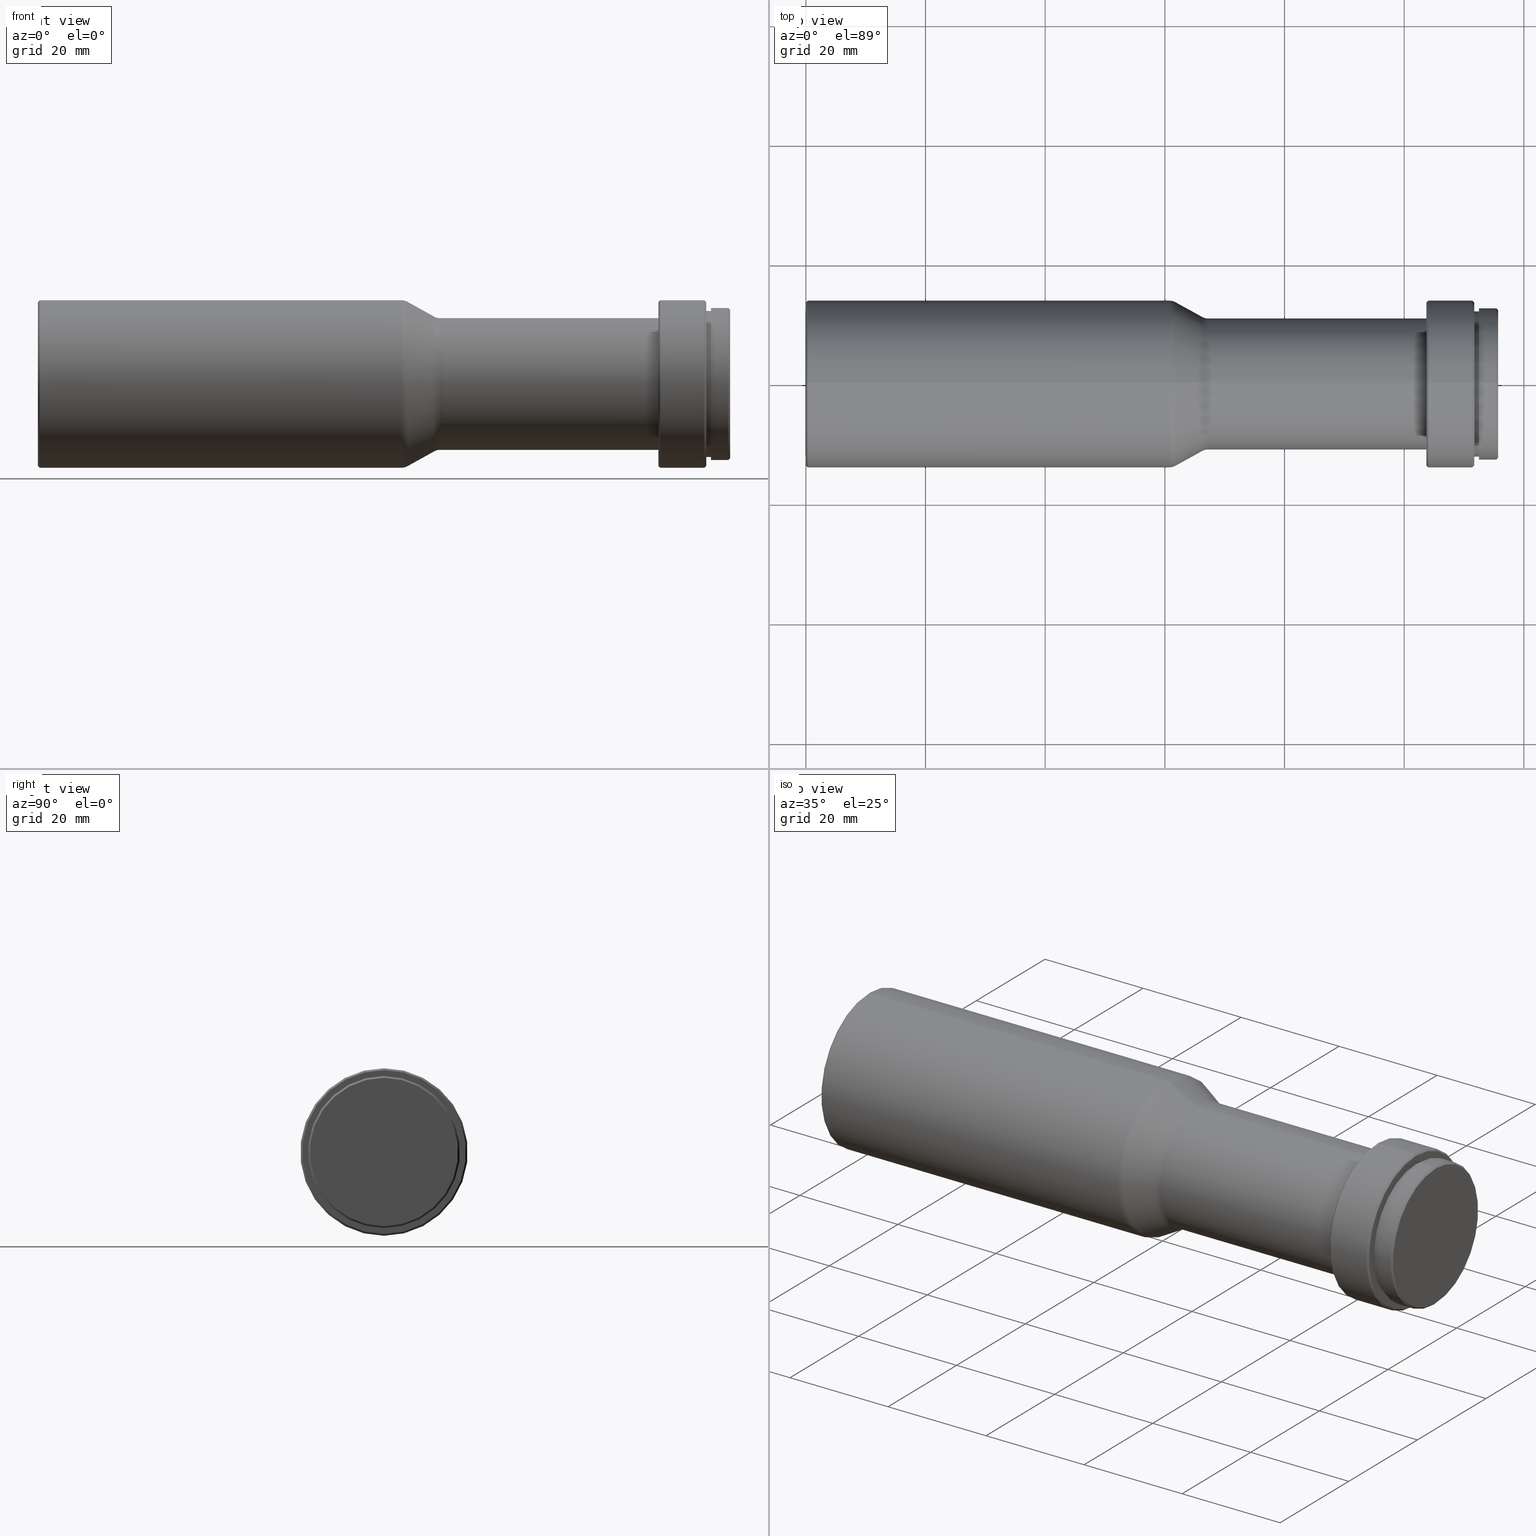
[diagram: canonical four-view strip — front | top / right | iso, engineering-drawing reading convention]
A machine part, canonical four-view strip (front | top / right | iso — engineering-drawing reading convention). The complete STEP part file that produces these views, byte-faithful:
ISO-10303-21;
HEADER;
FILE_DESCRIPTION (( 'STEP AP203' ),
    '1' );
FILE_NAME ('WWH30-63ATV3.STEP',
    '2021-05-11T01:16:36',
    ( 'Windows User' ),
    ( 'P R C' ),
    'SwSTEP 2.0',
    'SolidWorks 2017',
    '' );
FILE_SCHEMA (( 'CONFIG_CONTROL_DESIGN' ));
ENDSEC;

DATA;
#1 = AXIS2_PLACEMENT_3D ( 'NONE', #234, #544, #29 ) ;
#2 = APPLICATION_CONTEXT ( 'configuration controlled 3d designs of mechanical parts and assemblies' ) ;
#3 = PERSON_AND_ORGANIZATION_ROLE ( 'design_supplier' ) ;
#4 = PERSON_AND_ORGANIZATION ( #178, #433 ) ;
#5 = FACE_OUTER_BOUND ( 'NONE', #643, .T. ) ;
#6 = EDGE_CURVE ( 'NONE', #9, #712, #542, .T. ) ;
#7 = FACE_OUTER_BOUND ( 'NONE', #610, .T. ) ;
#8 = VERTEX_POINT ( 'NONE', #143 ) ;
#9 = VERTEX_POINT ( 'NONE', #467 ) ;
#10 = PERSON_AND_ORGANIZATION_ROLE ( 'creator' ) ;
#11 = CARTESIAN_POINT ( 'NONE',  ( 111.4000000000000200, 0.0000000000000000000, 0.0000000000000000000 ) ) ;
#12 = EDGE_CURVE ( 'NONE', #573, #21, #233, .T. ) ;
#13 = DIRECTION ( 'NONE',  ( 0.0000000000000000000, -1.000000000000000000, 0.0000000000000000000 ) ) ;
#14 = PRODUCT_DEFINITION ( 'δ֪', '', #420, #599 ) ;
#15 = DIRECTION ( 'NONE',  ( 0.0000000000000000000, 0.0000000000000000000, 1.000000000000000000 ) ) ;
#16 = FACE_OUTER_BOUND ( 'NONE', #797, .T. ) ;
#17 = CIRCLE ( 'NONE', #168, 12.70000000000000100 ) ;
#18 = DIRECTION ( 'NONE',  ( -1.000000000000000000, -0.0000000000000000000, -0.0000000000000000000 ) ) ;
#19 = AXIS2_PLACEMENT_3D ( 'NONE', #781, #400, #482 ) ;
#20 = TOROIDAL_SURFACE ( 'NONE', #260, 12.00000000000000000, 2.000000000000000000 ) ;
#21 = VERTEX_POINT ( 'NONE', #353 ) ;
#22 = DIRECTION ( 'NONE',  ( 0.0000000000000000000, 0.0000000000000000000, 1.000000000000000000 ) ) ;
#23 = DIRECTION ( 'NONE',  ( -0.8741572761215379300, 0.0000000000000000000, 0.4856429311786316100 ) ) ;
#24 = CARTESIAN_POINT ( 'NONE',  ( 61.75303380596247400, 1.699094229906919900E-015, -13.74831455224307100 ) ) ;
#25 = DIRECTION ( 'NONE',  ( -1.000000000000000000, -0.0000000000000000000, -0.0000000000000000000 ) ) ;
#26 = PERSON_AND_ORGANIZATION ( #178, #433 ) ;
#27 = EDGE_CURVE ( 'NONE', #305, #411, #75, .T. ) ;
#28 = VERTEX_POINT ( 'NONE', #167 ) ;
#29 = DIRECTION ( 'NONE',  ( 0.0000000000000000000, 0.0000000000000000000, 1.000000000000000000 ) ) ;
#30 = ORIENTED_EDGE ( 'NONE', *, *, #776, .F. ) ;
#31 = AXIS2_PLACEMENT_3D ( 'NONE', #559, #239, #733 ) ;
#32 = EDGE_LOOP ( 'NONE', ( #154, #427, #789, #414 ) ) ;
#33 = ORIENTED_EDGE ( 'NONE', *, *, #373, .F. ) ;
#34 = PLANE ( 'NONE',  #711 ) ;
#35 = AXIS2_PLACEMENT_3D ( 'NONE', #192, #312, #634 ) ;
#36 = DIRECTION ( 'NONE',  ( -1.000000000000000000, -0.0000000000000000000, -0.0000000000000000000 ) ) ;
#37 = CARTESIAN_POINT ( 'NONE',  ( 112.5000000000000000, 1.555301434917138600E-015, -12.70000000000000100 ) ) ;
#38 = CONICAL_SURFACE ( 'NONE', #750, 13.70000000000000100, 0.7853981633974569400 ) ;
#39 = DIRECTION ( 'NONE',  ( -1.000000000000000000, -0.0000000000000000000, -0.0000000000000000000 ) ) ;
#40 = CIRCLE ( 'NONE', #657, 2.000000000000000000 ) ;
#41 = ADVANCED_FACE ( 'NONE', ( #424 ), #280, .F. ) ;
#42 = VECTOR ( 'NONE', #84, 1000.000000000000000 ) ;
#43 = ORIENTED_EDGE ( 'NONE', *, *, #602, .T. ) ;
#44 = CARTESIAN_POINT ( 'NONE',  ( 111.7000000000000000, 0.0000000000000000000, 0.0000000000000000000 ) ) ;
#45 = CARTESIAN_POINT ( 'NONE',  ( 111.4000000000000200, 1.714505518806294600E-015, -14.00000000000000000 ) ) ;
#46 = DIRECTION ( 'NONE',  ( 0.0000000000000000000, 0.0000000000000000000, 1.000000000000000000 ) ) ;
#47 = AXIS2_PLACEMENT_3D ( 'NONE', #408, #743, #370 ) ;
#48 = ADVANCED_FACE ( 'NONE', ( #385 ), #20, .T. ) ;
#49 = CIRCLE ( 'NONE', #176, 11.00000000000000000 ) ;
#50 = ORIENTED_EDGE ( 'NONE', *, *, #266, .F. ) ;
#51 = ORIENTED_EDGE ( 'NONE', *, *, #415, .T. ) ;
#52 = ORIENTED_EDGE ( 'NONE', *, *, #585, .T. ) ;
#53 = CARTESIAN_POINT ( 'NONE',  ( 67.21825205639481700, 1.362522767961462900E-015, -11.00000000000000000 ) ) ;
#54 = EDGE_CURVE ( 'NONE', #320, #21, #556, .T. ) ;
#55 = EDGE_CURVE ( 'NONE', #512, #648, #325, .T. ) ;
#56 = AXIS2_PLACEMENT_3D ( 'NONE', #814, #60, #576 ) ;
#57 = CYLINDRICAL_SURFACE ( 'NONE', #816, 12.20000000000000100 ) ;
#58 = LINE ( 'NONE', #546, #463 ) ;
#59 = FACE_OUTER_BOUND ( 'NONE', #663, .T. ) ;
#60 = DIRECTION ( 'NONE',  ( 1.000000000000000000, 0.0000000000000000000, 0.0000000000000000000 ) ) ;
#61 = ORIENTED_EDGE ( 'NONE', *, *, #584, .F. ) ;
#62 = DIRECTION ( 'NONE',  ( -1.000000000000000000, -0.0000000000000000000, -0.0000000000000000000 ) ) ;
#63 = CARTESIAN_POINT ( 'NONE',  ( 111.7000000000000000, 1.677766114831874000E-015, -13.70000000000000100 ) ) ;
#64 = FACE_OUTER_BOUND ( 'NONE', #165, .T. ) ;
#65 = SECURITY_CLASSIFICATION_LEVEL ( 'unclassified' ) ;
#66 = ORIENTED_EDGE ( 'NONE', *, *, #378, .T. ) ;
#67 = ORIENTED_EDGE ( 'NONE', *, *, #449, .T. ) ;
#68 = ORIENTED_EDGE ( 'NONE', *, *, #206, .F. ) ;
#69 = EDGE_CURVE ( 'NONE', #531, #648, #359, .T. ) ;
#70 = CC_DESIGN_PERSON_AND_ORGANIZATION_ASSIGNMENT ( #26, #388, ( #695 ) ) ;
#71 = APPROVAL_ROLE ( '' ) ;
#72 = VECTOR ( 'NONE', #115, 1000.000000000000000 ) ;
#73 = AXIS2_PLACEMENT_3D ( 'NONE', #279, #155, #707 ) ;
#74 = FACE_OUTER_BOUND ( 'NONE', #293, .T. ) ;
#75 = CIRCLE ( 'NONE', #477, 11.00000000000000000 ) ;
#76 = ORIENTED_EDGE ( 'NONE', *, *, #718, .F. ) ;
#77 = DIRECTION ( 'NONE',  ( -0.8741572761215379300, 5.947410611964494700E-017, -0.4856429311786316100 ) ) ;
#78 = DIRECTION ( 'NONE',  ( -1.000000000000000000, -0.0000000000000000000, -0.0000000000000000000 ) ) ;
#79 = EDGE_CURVE ( 'NONE', #760, #574, #153, .T. ) ;
#80 = CYLINDRICAL_SURFACE ( 'NONE', #549, 14.00000000000000000 ) ;
#81 = AXIS2_PLACEMENT_3D ( 'NONE', #430, #103, #298 ) ;
#82 = EDGE_LOOP ( 'NONE', ( #697, #568 ) ) ;
#83 = ORIENTED_EDGE ( 'NONE', *, *, #145, .F. ) ;
#84 = DIRECTION ( 'NONE',  ( -1.000000000000000000, -0.0000000000000000000, -0.0000000000000000000 ) ) ;
#85 = ORIENTED_EDGE ( 'NONE', *, *, #584, .T. ) ;
#86 = CARTESIAN_POINT ( 'NONE',  ( 61.75303380596247400, 0.0000000000000000000, 13.74831455224307100 ) ) ;
#87 = DIRECTION ( 'NONE',  ( -1.000000000000000000, -0.0000000000000000000, -0.0000000000000000000 ) ) ;
#88 = EDGE_CURVE ( 'NONE', #547, #98, #381, .T. ) ;
#89 = DIRECTION ( 'NONE',  ( 0.0000000000000000000, 0.0000000000000000000, 1.000000000000000000 ) ) ;
#90 = CARTESIAN_POINT ( 'NONE',  ( 60.78174794360520400, 0.0000000000000000000, 0.0000000000000000000 ) ) ;
#91 = COORDINATED_UNIVERSAL_TIME_OFFSET ( 8, 0, .AHEAD. ) ;
#92 = LINE ( 'NONE', #483, #748 ) ;
#93 = EDGE_CURVE ( 'NONE', #393, #709, #795, .T. ) ;
#94 = CIRCLE ( 'NONE', #620, 12.20000000000000100 ) ;
#95 = CARTESIAN_POINT ( 'NONE',  ( 103.7000000000000200, 0.0000000000000000000, 0.0000000000000000000 ) ) ;
#96 = ORIENTED_EDGE ( 'NONE', *, *, #160, .T. ) ;
#97 = CC_DESIGN_DATE_AND_TIME_ASSIGNMENT ( #680, #767, ( #14 ) ) ;
#98 = VERTEX_POINT ( 'NONE', #24 ) ;
#99 = ADVANCED_FACE ( 'NONE', ( #642 ), #464, .T. ) ;
#100 = DIRECTION ( 'NONE',  ( 0.7071067811865414700, 0.0000000000000000000, -0.7071067811865536800 ) ) ;
#101 = ADVANCED_FACE ( 'NONE', ( #303 ), #163, .T. ) ;
#102 = CARTESIAN_POINT ( 'NONE',  ( 66.24696619403754000, 0.0000000000000000000, 0.0000000000000000000 ) ) ;
#103 = DIRECTION ( 'NONE',  ( -1.000000000000000000, -0.0000000000000000000, -0.0000000000000000000 ) ) ;
#104 = FACE_OUTER_BOUND ( 'NONE', #739, .T. ) ;
#105 = VERTEX_POINT ( 'NONE', #37 ) ;
#106 = ADVANCED_FACE ( 'NONE', ( #708 ), #476, .T. ) ;
#107 = ORIENTED_EDGE ( 'NONE', *, *, #426, .F. ) ;
#108 = DIRECTION ( 'NONE',  ( -1.000000000000000000, -0.0000000000000000000, -0.0000000000000000000 ) ) ;
#109 = ORIENTED_EDGE ( 'NONE', *, *, #718, .T. ) ;
#110 = PRODUCT ( 'WWH30-63ATV3', 'WWH30-63ATV3', '', ( #384 ) ) ;
#111 = CARTESIAN_POINT ( 'NONE',  ( 60.78174794360519700, 0.0000000000000000000, 0.0000000000000000000 ) ) ;
#112 = EDGE_CURVE ( 'NONE', #197, #141, #621, .T. ) ;
#113 = DIRECTION ( 'NONE',  ( 1.000000000000000000, 0.0000000000000000000, 0.0000000000000000000 ) ) ;
#114 = CC_DESIGN_DATE_AND_TIME_ASSIGNMENT ( #803, #450, ( #695 ) ) ;
#115 = DIRECTION ( 'NONE',  ( -0.7071067811865414700, 0.0000000000000000000, 0.7071067811865536800 ) ) ;
#116 = DATE_AND_TIME ( #485, #221 ) ;
#117 = LINE ( 'NONE', #63, #409 ) ;
#118 = ADVANCED_FACE ( 'NONE', ( #128, #59 ), #659, .F. ) ;
#119 = CONICAL_SURFACE ( 'NONE', #337, 12.40000000000000200, 0.7853981633975032400 ) ;
#120 = DIRECTION ( 'NONE',  ( -1.000000000000000000, -0.0000000000000000000, -0.0000000000000000000 ) ) ;
#121 = ORIENTED_EDGE ( 'NONE', *, *, #470, .T. ) ;
#122 = VERTEX_POINT ( 'NONE', #290 ) ;
#123 = AXIS2_PLACEMENT_3D ( 'NONE', #150, #392, #344 ) ;
#124 = CARTESIAN_POINT ( 'NONE',  ( 0.2999999999999999900, 0.0000000000000000000, 0.0000000000000000000 ) ) ;
#125 = AXIS2_PLACEMENT_3D ( 'NONE', #692, #265, #577 ) ;
#126 = CARTESIAN_POINT ( 'NONE',  ( 115.7000000000000000, 12.40000000000000200, 0.0000000000000000000 ) ) ;
#127 = CIRCLE ( 'NONE', #779, 13.70000000000000100 ) ;
#128 = FACE_BOUND ( 'NONE', #581, .T. ) ;
#129 = DIRECTION ( 'NONE',  ( 0.0000000000000000000, 0.0000000000000000000, 1.000000000000000000 ) ) ;
#130 = EDGE_LOOP ( 'NONE', ( #372, #109, #543, #332 ) ) ;
#131 = EDGE_CURVE ( 'NONE', #512, #600, #445, .T. ) ;
#132 = ORIENTED_EDGE ( 'NONE', *, *, #564, .T. ) ;
#133 = AXIS2_PLACEMENT_3D ( 'NONE', #158, #404, #285 ) ;
#134 = APPROVAL_STATUS ( 'not_yet_approved' ) ;
#135 = CARTESIAN_POINT ( 'NONE',  ( 115.7000000000000000, 0.0000000000000000000, 0.0000000000000000000 ) ) ;
#136 = AXIS2_PLACEMENT_3D ( 'NONE', #209, #13, #335 ) ;
#137 = APPROVAL_DATE_TIME ( #116, #264 ) ;
#138 = CIRCLE ( 'NONE', #217, 12.70000000000000100 ) ;
#139 = LINE ( 'NONE', #534, #571 ) ;
#140 = ORIENTED_EDGE ( 'NONE', *, *, #54, .T. ) ;
#141 = VERTEX_POINT ( 'NONE', #53 ) ;
#142 = DIRECTION ( 'NONE',  ( 1.000000000000000000, 0.0000000000000000000, 0.0000000000000000000 ) ) ;
#143 = CARTESIAN_POINT ( 'NONE',  ( 103.7000000000000200, 0.0000000000000000000, -13.70000000000000100 ) ) ;
#144 = EDGE_LOOP ( 'NONE', ( #61, #510, #583, #754 ) ) ;
#145 = EDGE_CURVE ( 'NONE', #665, #393, #727, .T. ) ;
#146 = DIRECTION ( 'NONE',  ( -1.000000000000000000, -0.0000000000000000000, -0.0000000000000000000 ) ) ;
#147 = CC_DESIGN_PERSON_AND_ORGANIZATION_ASSIGNMENT ( #766, #3, ( #420 ) ) ;
#148 = UNCERTAINTY_MEASURE_WITH_UNIT (LENGTH_MEASURE( 1.000000000000000100E-005 ), #701, 'distance_accuracy_value', 'NONE');
#149 = CARTESIAN_POINT ( 'NONE',  ( 0.0000000000000000000, 0.0000000000000000000, 0.0000000000000000000 ) ) ;
#150 = CARTESIAN_POINT ( 'NONE',  ( 111.7000000000000000, 0.0000000000000000000, 0.0000000000000000000 ) ) ;
#151 = AXIS2_PLACEMENT_3D ( 'NONE', #724, #113, #800 ) ;
#152 = CIRCLE ( 'NONE', #136, 2.000000000000000000 ) ;
#153 = CIRCLE ( 'NONE', #640, 2.000000000000000000 ) ;
#154 = ORIENTED_EDGE ( 'NONE', *, *, #819, .T. ) ;
#155 = DIRECTION ( 'NONE',  ( -1.000000000000000000, -0.0000000000000000000, -0.0000000000000000000 ) ) ;
#156 = ORIENTED_EDGE ( 'NONE', *, *, #251, .F. ) ;
#157 = CARTESIAN_POINT ( 'NONE',  ( 103.7000000000000200, 1.696135816819084200E-015, 13.70000000000000100 ) ) ;
#158 = CARTESIAN_POINT ( 'NONE',  ( 0.0000000000000000000, 0.0000000000000000000, 0.0000000000000000000 ) ) ;
#159 = DIRECTION ( 'NONE',  ( 0.0000000000000000000, 0.0000000000000000000, 1.000000000000000000 ) ) ;
#160 = EDGE_CURVE ( 'NONE', #281, #787, #633, .T. ) ;
#161 = CARTESIAN_POINT ( 'NONE',  ( 60.78174794360519700, 0.0000000000000000000, 14.00000000000000000 ) ) ;
#162 = CC_DESIGN_PERSON_AND_ORGANIZATION_ASSIGNMENT ( #794, #10, ( #420 ) ) ;
#163 = CYLINDRICAL_SURFACE ( 'NONE', #605, 12.20000000000000100 ) ;
#164 = ORIENTED_EDGE ( 'NONE', *, *, #470, .F. ) ;
#165 = EDGE_LOOP ( 'NONE', ( #684, #710, #656, #778 ) ) ;
#166 = DIRECTION ( 'NONE',  ( 0.0000000000000000000, 0.0000000000000000000, 1.000000000000000000 ) ) ;
#167 = CARTESIAN_POINT ( 'NONE',  ( 111.7000000000000000, 0.0000000000000000000, 13.70000000000000100 ) ) ;
#168 = AXIS2_PLACEMENT_3D ( 'NONE', #462, #78, #532 ) ;
#169 = ADVANCED_FACE ( 'NONE', ( #499 ), #768, .F. ) ;
#170 = DIRECTION ( 'NONE',  ( 0.0000000000000000000, 0.0000000000000000000, 1.000000000000000000 ) ) ;
#171 = DIRECTION ( 'NONE',  ( -0.7071067811865087100, 0.0000000000000000000, 0.7071067811865863200 ) ) ;
#172 = APPROVAL_PERSON_ORGANIZATION ( #272, #603, #651 ) ;
#173 = FACE_OUTER_BOUND ( 'NONE', #703, .T. ) ;
#174 = ORIENTED_EDGE ( 'NONE', *, *, #284, .T. ) ;
#175 = DIRECTION ( 'NONE',  ( -1.000000000000000000, -0.0000000000000000000, -0.0000000000000000000 ) ) ;
#176 = AXIS2_PLACEMENT_3D ( 'NONE', #505, #444, #691 ) ;
#177 = ORIENTED_EDGE ( 'NONE', *, *, #426, .T. ) ;
#178 = PERSON ( 'δָ��', 'δָ��', 'δָ��', ('δָ��'), ('δָ��'), ('δָ��') ) ;
#179 = CARTESIAN_POINT ( 'NONE',  ( 104.0000000000000100, 0.0000000000000000000, 0.0000000000000000000 ) ) ;
#180 = EDGE_CURVE ( 'NONE', #573, #558, #509, .T. ) ;
#181 = CARTESIAN_POINT ( 'NONE',  ( 115.7000000000000000, 0.0000000000000000000, 12.40000000000000200 ) ) ;
#182 = AXIS2_PLACEMENT_3D ( 'NONE', #652, #18, #336 ) ;
#183 = CALENDAR_DATE ( 2021, 11, 5 ) ;
#184 = CARTESIAN_POINT ( 'NONE',  ( 0.2999999999999999900, 0.0000000000000000000, 0.0000000000000000000 ) ) ;
#185 = VECTOR ( 'NONE', #679, 1000.000000000000000 ) ;
#186 = TOROIDAL_SURFACE ( 'NONE', #506, 12.00000000000000000, 2.000000000000000000 ) ;
#187 = DIRECTION ( 'NONE',  ( -1.000000000000000000, -0.0000000000000000000, -0.0000000000000000000 ) ) ;
#188 = AXIS2_PLACEMENT_3D ( 'NONE', #149, #458, #212 ) ;
#189 = ORIENTED_EDGE ( 'NONE', *, *, #228, .T. ) ;
#190 = DIRECTION ( 'NONE',  ( 0.0000000000000000000, 0.0000000000000000000, 1.000000000000000000 ) ) ;
#191 = EDGE_LOOP ( 'NONE', ( #492, #132, #649, #731 ) ) ;
#192 = CARTESIAN_POINT ( 'NONE',  ( 60.78174794360519700, 0.0000000000000000000, 0.0000000000000000000 ) ) ;
#193 = CARTESIAN_POINT ( 'NONE',  ( 0.0000000000000000000, 0.0000000000000000000, 0.0000000000000000000 ) ) ;
#194 = PRODUCT_RELATED_PRODUCT_CATEGORY ( 'detail', '', ( #110 ) ) ;
#195 = LINE ( 'NONE', #784, #244 ) ;
#196 = CONICAL_SURFACE ( 'NONE', #578, 14.00000000000000000, 0.7853981633974569400 ) ;
#197 = VERTEX_POINT ( 'NONE', #252 ) ;
#198 = ORIENTED_EDGE ( 'NONE', *, *, #313, .F. ) ;
#199 = EDGE_CURVE ( 'NONE', #197, #760, #597, .T. ) ;
#200 = PLANE ( 'NONE',  #56 ) ;
#201 = DIRECTION ( 'NONE',  ( 0.0000000000000000000, 0.0000000000000000000, 1.000000000000000000 ) ) ;
#202 = LOCAL_TIME ( 9, 16, 36.00000000000000000, #243 ) ;
#203 = CONICAL_SURFACE ( 'NONE', #596, 14.00000000000000000, 0.7853981633974481700 ) ;
#204 = EDGE_LOOP ( 'NONE', ( #598, #818, #236, #164 ) ) ;
#205 = ORIENTED_EDGE ( 'NONE', *, *, #309, .F. ) ;
#206 = EDGE_CURVE ( 'NONE', #558, #316, #519, .T. ) ;
#207 = ORIENTED_EDGE ( 'NONE', *, *, #283, .F. ) ;
#208 = ORIENTED_EDGE ( 'NONE', *, *, #93, .F. ) ;
#209 = CARTESIAN_POINT ( 'NONE',  ( 60.78174794360520400, 0.0000000000000000000, 12.00000000000000000 ) ) ;
#210 = CYLINDRICAL_SURFACE ( 'NONE', #513, 12.70000000000000100 ) ;
#211 = CYLINDRICAL_SURFACE ( 'NONE', #188, 11.00000000000000000 ) ;
#212 = DIRECTION ( 'NONE',  ( 0.0000000000000000000, 0.0000000000000000000, 1.000000000000000000 ) ) ;
#213 = VECTOR ( 'NONE', #669, 1000.000000000000000 ) ;
#214 = ORIENTED_EDGE ( 'NONE', *, *, #283, .T. ) ;
#215 = VERTEX_POINT ( 'NONE', #181 ) ;
#216 = DIRECTION ( 'NONE',  ( -1.000000000000000000, -0.0000000000000000000, -0.0000000000000000000 ) ) ;
#217 = AXIS2_PLACEMENT_3D ( 'NONE', #311, #175, #563 ) ;
#218 = CARTESIAN_POINT ( 'NONE',  ( 66.24696619403754000, 0.0000000000000000000, 0.0000000000000000000 ) ) ;
#219 = EDGE_CURVE ( 'NONE', #709, #393, #323, .T. ) ;
#220 = DIRECTION ( 'NONE',  ( 0.0000000000000000000, 0.0000000000000000000, -1.000000000000000000 ) ) ;
#221 = LOCAL_TIME ( 9, 16, 36.00000000000000000, #496 ) ;
#222 = AXIS2_PLACEMENT_3D ( 'NONE', #354, #25, #89 ) ;
#223 = FACE_OUTER_BOUND ( 'NONE', #352, .T. ) ;
#224 = ORIENTED_EDGE ( 'NONE', *, *, #88, .F. ) ;
#225 = ORIENTED_EDGE ( 'NONE', *, *, #199, .F. ) ;
#226 = CARTESIAN_POINT ( 'NONE',  ( 111.7000000000000000, 0.0000000000000000000, 12.20000000000000100 ) ) ;
#227 = ORIENTED_EDGE ( 'NONE', *, *, #744, .F. ) ;
#228 = EDGE_CURVE ( 'NONE', #411, #574, #379, .T. ) ;
#229 = DIRECTION ( 'NONE',  ( 1.000000000000000000, 0.0000000000000000000, 0.0000000000000000000 ) ) ;
#230 = CARTESIAN_POINT ( 'NONE',  ( 0.2999999999999999900, 0.0000000000000000000, -14.00000000000000000 ) ) ;
#231 = LINE ( 'NONE', #493, #185 ) ;
#232 = CIRCLE ( 'NONE', #73, 13.70000000000000100 ) ;
#233 = LINE ( 'NONE', #590, #565 ) ;
#234 = CARTESIAN_POINT ( 'NONE',  ( 67.21825205639481700, 0.0000000000000000000, 0.0000000000000000000 ) ) ;
#235 = ORIENTED_EDGE ( 'NONE', *, *, #27, .T. ) ;
#236 = ORIENTED_EDGE ( 'NONE', *, *, #627, .F. ) ;
#237 = CARTESIAN_POINT ( 'NONE',  ( 112.5000000000000000, 0.0000000000000000000, 0.0000000000000000000 ) ) ;
#238 = EDGE_CURVE ( 'NONE', #305, #141, #289, .T. ) ;
#239 = DIRECTION ( 'NONE',  ( -1.000000000000000000, -0.0000000000000000000, -0.0000000000000000000 ) ) ;
#240 = DIRECTION ( 'NONE',  ( -1.000000000000000000, -0.0000000000000000000, -0.0000000000000000000 ) ) ;
#241 = ADVANCED_FACE ( 'NONE', ( #694 ), #278, .T. ) ;
#242 = DIRECTION ( 'NONE',  ( -1.000000000000000000, -0.0000000000000000000, -0.0000000000000000000 ) ) ;
#243 = COORDINATED_UNIVERSAL_TIME_OFFSET ( 8, 0, .AHEAD. ) ;
#244 = VECTOR ( 'NONE', #100, 1000.000000000000000 ) ;
#245 = DIRECTION ( 'NONE',  ( 0.7071067811865476800, 8.659560562354931600E-017, 0.7071067811865474600 ) ) ;
#246 = EDGE_LOOP ( 'NONE', ( #317, #342, #351, #270 ) ) ;
#247 = CARTESIAN_POINT ( 'NONE',  ( 115.4000000000000300, 0.0000000000000000000, 12.70000000000000100 ) ) ;
#248 = ORIENTED_EDGE ( 'NONE', *, *, #112, .T. ) ;
#249 = MANIFOLD_SOLID_BREP ( '��ת1', #677 ) ;
#250 = DIRECTION ( 'NONE',  ( 0.0000000000000000000, 0.0000000000000000000, 1.000000000000000000 ) ) ;
#251 = EDGE_CURVE ( 'NONE', #717, #316, #350, .T. ) ;
#252 = CARTESIAN_POINT ( 'NONE',  ( 66.24696619403754000, 1.530808498934191500E-015, -11.25168544775692900 ) ) ;
#253 = ADVANCED_FACE ( 'NONE', ( #173 ), #186, .T. ) ;
#254 = AXIS2_PLACEMENT_3D ( 'NONE', #135, #761, #455 ) ;
#255 = DIRECTION ( 'NONE',  ( -1.000000000000000000, -0.0000000000000000000, -0.0000000000000000000 ) ) ;
#256 = CARTESIAN_POINT ( 'NONE',  ( 103.7000000000000200, 1.347111479062088400E-015, -11.00000000000000000 ) ) ;
#257 = FACE_OUTER_BOUND ( 'NONE', #82, .T. ) ;
#258 = ADVANCED_FACE ( 'NONE', ( #647 ), #119, .T. ) ;
#259 = VECTOR ( 'NONE', #245, 1000.000000000000000 ) ;
#260 = AXIS2_PLACEMENT_3D ( 'NONE', #90, #554, #609 ) ;
#261 = EDGE_LOOP ( 'NONE', ( #501, #702, #43, #729 ) ) ;
#262 = CARTESIAN_POINT ( 'NONE',  ( 0.0000000000000000000, 0.0000000000000000000, 0.0000000000000000000 ) ) ;
#263 = DIRECTION ( 'NONE',  ( -1.000000000000000000, -0.0000000000000000000, -0.0000000000000000000 ) ) ;
#264 = APPROVAL ( #589, 'δָ��' ) ;
#265 = DIRECTION ( 'NONE',  ( -1.000000000000000000, -0.0000000000000000000, -0.0000000000000000000 ) ) ;
#266 = EDGE_CURVE ( 'NONE', #393, #105, #751, .T. ) ;
#267 = ORIENTED_EDGE ( 'NONE', *, *, #307, .T. ) ;
#268 = ORIENTED_EDGE ( 'NONE', *, *, #494, .T. ) ;
#269 = AXIS2_PLACEMENT_3D ( 'NONE', #349, #108, #616 ) ;
#270 = ORIENTED_EDGE ( 'NONE', *, *, #602, .F. ) ;
#271 =( NAMED_UNIT ( * ) PLANE_ANGLE_UNIT ( ) SI_UNIT ( $, .RADIAN. ) );
#272 = PERSON_AND_ORGANIZATION ( #178, #433 ) ;
#273 = CARTESIAN_POINT ( 'NONE',  ( 0.0000000000000000000, 0.0000000000000000000, -13.70000000000000100 ) ) ;
#274 = VECTOR ( 'NONE', #23, 1000.000000000000100 ) ;
#275 = ORIENTED_EDGE ( 'NONE', *, *, #490, .F. ) ;
#276 = CARTESIAN_POINT ( 'NONE',  ( 103.7000000000000200, 0.0000000000000000000, 11.00000000000000000 ) ) ;
#277 = CARTESIAN_POINT ( 'NONE',  ( 66.24696619403754000, 0.0000000000000000000, 11.25168544775692900 ) ) ;
#278 = CONICAL_SURFACE ( 'NONE', #594, 13.70000000000000100, 0.7853981633974569400 ) ;
#279 = CARTESIAN_POINT ( 'NONE',  ( 103.7000000000000200, 0.0000000000000000000, 0.0000000000000000000 ) ) ;
#280 = TOROIDAL_SURFACE ( 'NONE', #1, 13.00000000000000000, 2.000000000000000000 ) ;
#281 = VERTEX_POINT ( 'NONE', #745 ) ;
#282 = EDGE_LOOP ( 'NONE', ( #214, #683, #502, #68 ) ) ;
#283 = EDGE_CURVE ( 'NONE', #558, #573, #817, .T. ) ;
#284 = EDGE_CURVE ( 'NONE', #712, #787, #618, .T. ) ;
#285 = DIRECTION ( 'NONE',  ( 0.0000000000000000000, 0.0000000000000000000, 1.000000000000000000 ) ) ;
#286 = CARTESIAN_POINT ( 'NONE',  ( 112.5000000000000000, 0.0000000000000000000, 12.20000000000000100 ) ) ;
#287 = APPROVAL_DATE_TIME ( #715, #567 ) ;
#288 = CIRCLE ( 'NONE', #254, 12.40000000000000200 ) ;
#289 = LINE ( 'NONE', #678, #806 ) ;
#290 = CARTESIAN_POINT ( 'NONE',  ( 112.5000000000000000, 0.0000000000000000000, 12.70000000000000100 ) ) ;
#291 = ORIENTED_EDGE ( 'NONE', *, *, #309, .T. ) ;
#292 = DIRECTION ( 'NONE',  ( 0.0000000000000000000, 0.0000000000000000000, -1.000000000000000000 ) ) ;
#293 = EDGE_LOOP ( 'NONE', ( #520, #362, #696, #763 ) ) ;
#294 = EDGE_LOOP ( 'NONE', ( #382, #772 ) ) ;
#295 = DIRECTION ( 'NONE',  ( 0.0000000000000000000, 0.0000000000000000000, 1.000000000000000000 ) ) ;
#296 = ADVANCED_BREP_SHAPE_REPRESENTATION ( 'WWH30-63ATV3', ( #249, #528 ), #374 ) ;
#297 = AXIS2_PLACEMENT_3D ( 'NONE', #713, #469, #343 ) ;
#298 = DIRECTION ( 'NONE',  ( 0.0000000000000000000, 0.0000000000000000000, 1.000000000000000000 ) ) ;
#299 = DIRECTION ( 'NONE',  ( -1.000000000000000000, -0.0000000000000000000, -0.0000000000000000000 ) ) ;
#300 = DIRECTION ( 'NONE',  ( 0.0000000000000000000, 0.0000000000000000000, 1.000000000000000000 ) ) ;
#301 = CONICAL_SURFACE ( 'NONE', #297, 11.25168544775692900, 0.5070985043923365000 ) ;
#302 = ADVANCED_FACE ( 'NONE', ( #104, #314 ), #706, .F. ) ;
#303 = FACE_OUTER_BOUND ( 'NONE', #403, .T. ) ;
#304 = DIRECTION ( 'NONE',  ( 0.0000000000000000000, 0.0000000000000000000, 1.000000000000000000 ) ) ;
#305 = VERTEX_POINT ( 'NONE', #256 ) ;
#306 = DIRECTION ( 'NONE',  ( 0.0000000000000000000, 0.0000000000000000000, 1.000000000000000000 ) ) ;
#307 = EDGE_CURVE ( 'NONE', #8, #395, #232, .T. ) ;
#308 = ADVANCED_FACE ( 'NONE', ( #7 ), #786, .T. ) ;
#309 = EDGE_CURVE ( 'NONE', #197, #98, #139, .T. ) ;
#310 = CARTESIAN_POINT ( 'NONE',  ( 0.0000000000000000000, 0.0000000000000000000, 0.0000000000000000000 ) ) ;
#311 = CARTESIAN_POINT ( 'NONE',  ( 112.5000000000000000, 0.0000000000000000000, 0.0000000000000000000 ) ) ;
#312 = DIRECTION ( 'NONE',  ( -1.000000000000000000, -0.0000000000000000000, -0.0000000000000000000 ) ) ;
#313 = EDGE_CURVE ( 'NONE', #487, #28, #454, .T. ) ;
#314 = FACE_BOUND ( 'NONE', #361, .T. ) ;
#315 = DIRECTION ( 'NONE',  ( 0.0000000000000000000, 0.0000000000000000000, 1.000000000000000000 ) ) ;
#316 = VERTEX_POINT ( 'NONE', #714 ) ;
#317 = ORIENTED_EDGE ( 'NONE', *, *, #490, .T. ) ;
#318 = CARTESIAN_POINT ( 'NONE',  ( 0.0000000000000000000, 1.714505518806294600E-015, -14.00000000000000000 ) ) ;
#319 = ADVANCED_FACE ( 'NONE', ( #591 ), #196, .T. ) ;
#320 = VERTEX_POINT ( 'NONE', #273 ) ;
#321 = DIRECTION ( 'NONE',  ( -1.000000000000000000, 0.0000000000000000000, -0.0000000000000000000 ) ) ;
#322 = DIRECTION ( 'NONE',  ( 0.0000000000000000000, 0.0000000000000000000, 1.000000000000000000 ) ) ;
#323 = CIRCLE ( 'NONE', #397, 12.70000000000000100 ) ;
#324 = AXIS2_PLACEMENT_3D ( 'NONE', #111, #299, #674 ) ;
#325 = LINE ( 'NONE', #474, #42 ) ;
#326 = CARTESIAN_POINT ( 'NONE',  ( 104.0000000000000100, 0.0000000000000000000, 0.0000000000000000000 ) ) ;
#327 = ORIENTED_EDGE ( 'NONE', *, *, #112, .F. ) ;
#328 = APPLICATION_CONTEXT ( 'configuration controlled 3d designs of mechanical parts and assemblies' ) ;
#329 = PERSON_AND_ORGANIZATION ( #178, #433 ) ;
#330 = CIRCLE ( 'NONE', #804, 14.00000000000000000 ) ;
#331 = VECTOR ( 'NONE', #488, 1000.000000000000000 ) ;
#332 = ORIENTED_EDGE ( 'NONE', *, *, #180, .F. ) ;
#333 = ORIENTED_EDGE ( 'NONE', *, *, #627, .T. ) ;
#334 = PERSON_AND_ORGANIZATION_ROLE ( 'creator' ) ;
#335 = DIRECTION ( 'NONE',  ( 0.0000000000000000000, 0.0000000000000000000, -1.000000000000000000 ) ) ;
#336 = DIRECTION ( 'NONE',  ( 0.0000000000000000000, 0.0000000000000000000, 1.000000000000000000 ) ) ;
#337 = AXIS2_PLACEMENT_3D ( 'NONE', #436, #749, #807 ) ;
#338 = COORDINATED_UNIVERSAL_TIME_OFFSET ( 8, 0, .AHEAD. ) ;
#339 = VECTOR ( 'NONE', #363, 1000.000000000000000 ) ;
#340 = ORIENTED_EDGE ( 'NONE', *, *, #79, .F. ) ;
#341 = DIRECTION ( 'NONE',  ( -1.000000000000000000, -0.0000000000000000000, -0.0000000000000000000 ) ) ;
#342 = ORIENTED_EDGE ( 'NONE', *, *, #783, .T. ) ;
#343 = DIRECTION ( 'NONE',  ( 0.0000000000000000000, 0.0000000000000000000, 1.000000000000000000 ) ) ;
#344 = DIRECTION ( 'NONE',  ( 0.0000000000000000000, 0.0000000000000000000, 1.000000000000000000 ) ) ;
#345 = DIRECTION ( 'NONE',  ( -1.000000000000000000, -0.0000000000000000000, -0.0000000000000000000 ) ) ;
#346 = AXIS2_PLACEMENT_3D ( 'NONE', #218, #216, #15 ) ;
#347 = APPROVAL_PERSON_ORGANIZATION ( #736, #264, #448 ) ;
#348 = CONICAL_SURFACE ( 'NONE', #465, 12.40000000000000200, 0.7853981633975032400 ) ;
#349 = CARTESIAN_POINT ( 'NONE',  ( 111.4000000000000200, 0.0000000000000000000, 0.0000000000000000000 ) ) ;
#350 = LINE ( 'NONE', #624, #259 ) ;
#351 = ORIENTED_EDGE ( 'NONE', *, *, #6, .F. ) ;
#352 = EDGE_LOOP ( 'NONE', ( #753, #447, #52, #593 ) ) ;
#353 = CARTESIAN_POINT ( 'NONE',  ( 0.2999999999999999900, 0.0000000000000000000, -14.00000000000000000 ) ) ;
#354 = CARTESIAN_POINT ( 'NONE',  ( 103.7000000000000200, 0.0000000000000000000, 0.0000000000000000000 ) ) ;
#355 = CARTESIAN_POINT ( 'NONE',  ( 0.0000000000000000000, 0.0000000000000000000, 0.0000000000000000000 ) ) ;
#356 = CARTESIAN_POINT ( 'NONE',  ( 111.7000000000000000, 0.0000000000000000000, 0.0000000000000000000 ) ) ;
#357 = LINE ( 'NONE', #277, #274 ) ;
#358 = CARTESIAN_POINT ( 'NONE',  ( 115.4000000000000300, 0.0000000000000000000, 0.0000000000000000000 ) ) ;
#359 = CIRCLE ( 'NONE', #811, 12.20000000000000100 ) ;
#360 = CARTESIAN_POINT ( 'NONE',  ( 0.0000000000000000000, 1.696135816819084200E-015, 13.70000000000000100 ) ) ;
#361 = EDGE_LOOP ( 'NONE', ( #762, #177 ) ) ;
#362 = ORIENTED_EDGE ( 'NONE', *, *, #238, .T. ) ;
#363 = DIRECTION ( 'NONE',  ( -1.000000000000000000, -0.0000000000000000000, -0.0000000000000000000 ) ) ;
#364 = AXIS2_PLACEMENT_3D ( 'NONE', #604, #612, #295 ) ;
#365 = CARTESIAN_POINT ( 'NONE',  ( 111.7000000000000000, 0.0000000000000000000, 0.0000000000000000000 ) ) ;
#366 = APPROVAL_PERSON_ORGANIZATION ( #537, #567, #71 ) ;
#367 = DIRECTION ( 'NONE',  ( 0.0000000000000000000, 0.0000000000000000000, -1.000000000000000000 ) ) ;
#368 = FACE_OUTER_BOUND ( 'NONE', #282, .T. ) ;
#369 = ORIENTED_EDGE ( 'NONE', *, *, #401, .F. ) ;
#370 = DIRECTION ( 'NONE',  ( 0.0000000000000000000, -1.224646799147353500E-016, 1.000000000000000000 ) ) ;
#371 = ORIENTED_EDGE ( 'NONE', *, *, #548, .T. ) ;
#372 = ORIENTED_EDGE ( 'NONE', *, *, #449, .F. ) ;
#373 = EDGE_CURVE ( 'NONE', #600, #531, #759, .T. ) ;
#374 =( GEOMETRIC_REPRESENTATION_CONTEXT ( 3 ) GLOBAL_UNCERTAINTY_ASSIGNED_CONTEXT ( ( #148 ) ) GLOBAL_UNIT_ASSIGNED_CONTEXT ( ( #701, #271, #525 ) ) REPRESENTATION_CONTEXT ( 'NONE', 'WORKASPACE' ) );
#375 = ADVANCED_FACE ( 'NONE', ( #435 ), #301, .T. ) ;
#376 = PLANE ( 'NONE',  #653 ) ;
#377 = FACE_OUTER_BOUND ( 'NONE', #530, .T. ) ;
#378 = EDGE_CURVE ( 'NONE', #760, #547, #357, .T. ) ;
#379 = LINE ( 'NONE', #615, #339 ) ;
#380 = DIRECTION ( 'NONE',  ( -0.0000000000000000000, 0.0000000000000000000, 1.000000000000000000 ) ) ;
#381 = CIRCLE ( 'NONE', #364, 13.74831455224307100 ) ;
#382 = ORIENTED_EDGE ( 'NONE', *, *, #776, .T. ) ;
#383 = AXIS2_PLACEMENT_3D ( 'NONE', #434, #507, #638 ) ;
#384 = MECHANICAL_CONTEXT ( 'NONE', #2, 'mechanical' ) ;
#385 = FACE_OUTER_BOUND ( 'NONE', #130, .T. ) ;
#386 = APPLICATION_PROTOCOL_DEFINITION ( 'international standard', 'config_control_design', 1994, #328 ) ;
#387 = AXIS2_PLACEMENT_3D ( 'NONE', #237, #626, #429 ) ;
#388 = PERSON_AND_ORGANIZATION_ROLE ( 'classification_officer' ) ;
#389 = DIRECTION ( 'NONE',  ( 1.000000000000000000, 0.0000000000000000000, 0.0000000000000000000 ) ) ;
#390 = CYLINDRICAL_SURFACE ( 'NONE', #473, 14.00000000000000000 ) ;
#391 = CYLINDRICAL_SURFACE ( 'NONE', #182, 14.00000000000000000 ) ;
#392 = DIRECTION ( 'NONE',  ( -1.000000000000000000, -0.0000000000000000000, -0.0000000000000000000 ) ) ;
#393 = VERTEX_POINT ( 'NONE', #536 ) ;
#394 = CC_DESIGN_APPROVAL ( #567, ( #420 ) ) ;
#395 = VERTEX_POINT ( 'NONE', #157 ) ;
#396 = CARTESIAN_POINT ( 'NONE',  ( 104.0000000000000100, 0.0000000000000000000, 0.0000000000000000000 ) ) ;
#397 = AXIS2_PLACEMENT_3D ( 'NONE', #358, #792, #417 ) ;
#398 = SHAPE_DEFINITION_REPRESENTATION ( #551, #296 ) ;
#399 = ORIENTED_EDGE ( 'NONE', *, *, #698, .T. ) ;
#400 = DIRECTION ( 'NONE',  ( -1.000000000000000000, -0.0000000000000000000, -0.0000000000000000000 ) ) ;
#401 = EDGE_CURVE ( 'NONE', #600, #512, #94, .T. ) ;
#402 = ORIENTED_EDGE ( 'NONE', *, *, #378, .F. ) ;
#403 = EDGE_LOOP ( 'NONE', ( #582, #720, #687, #33 ) ) ;
#404 = DIRECTION ( 'NONE',  ( -1.000000000000000000, -0.0000000000000000000, -0.0000000000000000000 ) ) ;
#405 = DIRECTION ( 'NONE',  ( -1.000000000000000000, -0.0000000000000000000, -0.0000000000000000000 ) ) ;
#406 = EDGE_CURVE ( 'NONE', #547, #558, #152, .T. ) ;
#407 = DIRECTION ( 'NONE',  ( 0.0000000000000000000, 0.0000000000000000000, 1.000000000000000000 ) ) ;
#408 = CARTESIAN_POINT ( 'NONE',  ( 67.21825205639481700, 1.592040838891559100E-015, -13.00000000000000000 ) ) ;
#409 = VECTOR ( 'NONE', #813, 1000.000000000000000 ) ;
#410 = VECTOR ( 'NONE', #419, 1000.000000000000000 ) ;
#411 = VERTEX_POINT ( 'NONE', #276 ) ;
#412 = DIRECTION ( 'NONE',  ( 0.0000000000000000000, 0.0000000000000000000, 1.000000000000000000 ) ) ;
#413 = ADVANCED_FACE ( 'NONE', ( #74 ), #211, .T. ) ;
#414 = ORIENTED_EDGE ( 'NONE', *, *, #494, .F. ) ;
#415 = EDGE_CURVE ( 'NONE', #105, #122, #17, .T. ) ;
#416 = CARTESIAN_POINT ( 'NONE',  ( 103.7000000000000200, 0.0000000000000000000, 0.0000000000000000000 ) ) ;
#417 = DIRECTION ( 'NONE',  ( 0.0000000000000000000, 0.0000000000000000000, 1.000000000000000000 ) ) ;
#418 = DIRECTION ( 'NONE',  ( 1.000000000000000000, 0.0000000000000000000, 0.0000000000000000000 ) ) ;
#419 = DIRECTION ( 'NONE',  ( -0.7071067811865087100, 8.659560562355408600E-017, -0.7071067811865863200 ) ) ;
#420 = PRODUCT_DEFINITION_FORMATION_WITH_SPECIFIED_SOURCE ( '�κ�', '', #110, .NOT_KNOWN. ) ;
#421 = LINE ( 'NONE', #664, #72 ) ;
#422 = DIRECTION ( 'NONE',  ( -1.000000000000000000, -0.0000000000000000000, -0.0000000000000000000 ) ) ;
#423 = ADVANCED_FACE ( 'NONE', ( #607 ), #391, .T. ) ;
#424 = FACE_OUTER_BOUND ( 'NONE', #623, .T. ) ;
#425 = DIRECTION ( 'NONE',  ( -1.000000000000000000, -0.0000000000000000000, -0.0000000000000000000 ) ) ;
#426 = EDGE_CURVE ( 'NONE', #648, #531, #529, .T. ) ;
#427 = ORIENTED_EDGE ( 'NONE', *, *, #145, .T. ) ;
#428 = DIRECTION ( 'NONE',  ( -1.000000000000000000, -0.0000000000000000000, -0.0000000000000000000 ) ) ;
#429 = DIRECTION ( 'NONE',  ( 0.0000000000000000000, 0.0000000000000000000, 1.000000000000000000 ) ) ;
#430 = CARTESIAN_POINT ( 'NONE',  ( 0.2999999999999999900, 0.0000000000000000000, 0.0000000000000000000 ) ) ;
#431 = DIRECTION ( 'NONE',  ( -1.000000000000000000, -0.0000000000000000000, -0.0000000000000000000 ) ) ;
#432 = AXIS2_PLACEMENT_3D ( 'NONE', #11, #523, #459 ) ;
#433 = ORGANIZATION ( 'δָ��', 'δָ��', '' ) ;
#434 = CARTESIAN_POINT ( 'NONE',  ( 104.0000000000000100, 0.0000000000000000000, 0.0000000000000000000 ) ) ;
#435 = FACE_OUTER_BOUND ( 'NONE', #608, .T. ) ;
#436 = CARTESIAN_POINT ( 'NONE',  ( 115.7000000000000000, 0.0000000000000000000, 0.0000000000000000000 ) ) ;
#437 = EDGE_LOOP ( 'NONE', ( #369, #716 ) ) ;
#438 = DIRECTION ( 'NONE',  ( 0.0000000000000000000, 0.0000000000000000000, -1.000000000000000000 ) ) ;
#439 = ORIENTED_EDGE ( 'NONE', *, *, #160, .F. ) ;
#440 = ORIENTED_EDGE ( 'NONE', *, *, #788, .T. ) ;
#441 = CARTESIAN_POINT ( 'NONE',  ( 0.0000000000000000000, 0.0000000000000000000, 0.0000000000000000000 ) ) ;
#442 = CARTESIAN_POINT ( 'NONE',  ( 66.24696619403754000, 0.0000000000000000000, 11.25168544775692900 ) ) ;
#443 = VECTOR ( 'NONE', #171, 1000.000000000000000 ) ;
#444 = DIRECTION ( 'NONE',  ( -1.000000000000000000, -0.0000000000000000000, -0.0000000000000000000 ) ) ;
#445 = CIRCLE ( 'NONE', #387, 12.20000000000000100 ) ;
#446 = ORIENTED_EDGE ( 'NONE', *, *, #55, .F. ) ;
#447 = ORIENTED_EDGE ( 'NONE', *, *, #251, .T. ) ;
#448 = APPROVAL_ROLE ( '' ) ;
#449 = EDGE_CURVE ( 'NONE', #98, #573, #40, .T. ) ;
#450 = DATE_TIME_ROLE ( 'classification_date' ) ;
#451 = EDGE_CURVE ( 'NONE', #760, #197, #672, .T. ) ;
#452 = CIRCLE ( 'NONE', #453, 12.40000000000000200 ) ;
#453 = AXIS2_PLACEMENT_3D ( 'NONE', #676, #242, #250 ) ;
#454 = CIRCLE ( 'NONE', #123, 13.70000000000000100 ) ;
#455 = DIRECTION ( 'NONE',  ( 0.0000000000000000000, 0.0000000000000000000, 1.000000000000000000 ) ) ;
#456 = ORIENTED_EDGE ( 'NONE', *, *, #515, .F. ) ;
#457 = ORIENTED_EDGE ( 'NONE', *, *, #27, .F. ) ;
#458 = DIRECTION ( 'NONE',  ( -1.000000000000000000, -0.0000000000000000000, -0.0000000000000000000 ) ) ;
#459 = DIRECTION ( 'NONE',  ( 0.0000000000000000000, 0.0000000000000000000, 1.000000000000000000 ) ) ;
#460 = CARTESIAN_POINT ( 'NONE',  ( 0.0000000000000000000, 0.0000000000000000000, 12.20000000000000100 ) ) ;
#461 = AXIS2_PLACEMENT_3D ( 'NONE', #481, #557, #611 ) ;
#462 = CARTESIAN_POINT ( 'NONE',  ( 112.5000000000000000, 0.0000000000000000000, 0.0000000000000000000 ) ) ;
#463 = VECTOR ( 'NONE', #658, 1000.000000000000000 ) ;
#464 = CYLINDRICAL_SURFACE ( 'NONE', #133, 12.70000000000000100 ) ;
#465 = AXIS2_PLACEMENT_3D ( 'NONE', #630, #572, #315 ) ;
#466 = ORIENTED_EDGE ( 'NONE', *, *, #406, .F. ) ;
#467 = CARTESIAN_POINT ( 'NONE',  ( 111.4000000000000200, 0.0000000000000000000, 14.00000000000000000 ) ) ;
#468 = ORIENTED_EDGE ( 'NONE', *, *, #548, .F. ) ;
#469 = DIRECTION ( 'NONE',  ( -1.000000000000000000, -0.0000000000000000000, -0.0000000000000000000 ) ) ;
#470 = EDGE_CURVE ( 'NONE', #709, #122, #58, .T. ) ;
#471 = DIRECTION ( 'NONE',  ( -1.000000000000000000, -0.0000000000000000000, -0.0000000000000000000 ) ) ;
#472 = DIRECTION ( 'NONE',  ( 0.0000000000000000000, 0.0000000000000000000, 1.000000000000000000 ) ) ;
#473 = AXIS2_PLACEMENT_3D ( 'NONE', #262, #62, #688 ) ;
#474 = CARTESIAN_POINT ( 'NONE',  ( 0.0000000000000000000, 1.494069094959771100E-015, -12.20000000000000100 ) ) ;
#475 = CONICAL_SURFACE ( 'NONE', #383, 14.00000000000000000, 0.7853981633974569400 ) ;
#476 = CYLINDRICAL_SURFACE ( 'NONE', #650, 11.00000000000000000 ) ;
#477 = AXIS2_PLACEMENT_3D ( 'NONE', #95, #550, #719 ) ;
#478 = CARTESIAN_POINT ( 'NONE',  ( 112.5000000000000000, 12.20000000000000100, 0.0000000000000000000 ) ) ;
#479 = ORIENTED_EDGE ( 'NONE', *, *, #540, .F. ) ;
#480 = DIRECTION ( 'NONE',  ( 0.0000000000000000000, 0.0000000000000000000, -1.000000000000000000 ) ) ;
#481 = CARTESIAN_POINT ( 'NONE',  ( 111.7000000000000000, 0.0000000000000000000, 0.0000000000000000000 ) ) ;
#482 = DIRECTION ( 'NONE',  ( 0.0000000000000000000, 0.0000000000000000000, 1.000000000000000000 ) ) ;
#483 = CARTESIAN_POINT ( 'NONE',  ( 0.0000000000000000000, 0.0000000000000000000, 14.00000000000000000 ) ) ;
#484 = CARTESIAN_POINT ( 'NONE',  ( 0.0000000000000000000, 0.0000000000000000000, 14.00000000000000000 ) ) ;
#485 = CALENDAR_DATE ( 2021, 11, 5 ) ;
#486 = VECTOR ( 'NONE', #810, 1000.000000000000000 ) ;
#487 = VERTEX_POINT ( 'NONE', #723 ) ;
#488 = DIRECTION ( 'NONE',  ( -1.000000000000000000, -0.0000000000000000000, -0.0000000000000000000 ) ) ;
#489 = ORIENTED_EDGE ( 'NONE', *, *, #632, .T. ) ;
#490 = EDGE_CURVE ( 'NONE', #28, #487, #127, .T. ) ;
#491 = CARTESIAN_POINT ( 'NONE',  ( 0.2999999999999999900, 0.0000000000000000000, 0.0000000000000000000 ) ) ;
#492 = ORIENTED_EDGE ( 'NONE', *, *, #284, .F. ) ;
#493 = CARTESIAN_POINT ( 'NONE',  ( 104.0000000000000100, 1.714505518806294600E-015, 14.00000000000000000 ) ) ;
#494 = EDGE_CURVE ( 'NONE', #215, #709, #775, .T. ) ;
#495 = CARTESIAN_POINT ( 'NONE',  ( 0.0000000000000000000, 0.0000000000000000000, 0.0000000000000000000 ) ) ;
#496 = COORDINATED_UNIVERSAL_TIME_OFFSET ( 8, 0, .AHEAD. ) ;
#497 = CIRCLE ( 'NONE', #269, 14.00000000000000000 ) ;
#498 = DIRECTION ( 'NONE',  ( 0.0000000000000000000, 0.0000000000000000000, 1.000000000000000000 ) ) ;
#499 = FACE_OUTER_BOUND ( 'NONE', #675, .T. ) ;
#500 = ADVANCED_FACE ( 'NONE', ( #654, #641 ), #34, .F. ) ;
#501 = ORIENTED_EDGE ( 'NONE', *, *, #783, .F. ) ;
#502 = ORIENTED_EDGE ( 'NONE', *, *, #585, .F. ) ;
#503 = CARTESIAN_POINT ( 'NONE',  ( 0.0000000000000000000, 1.555301434917138600E-015, -12.70000000000000100 ) ) ;
#504 = AXIS2_PLACEMENT_3D ( 'NONE', #184, #418, #367 ) ;
#505 = CARTESIAN_POINT ( 'NONE',  ( 67.21825205639481700, 0.0000000000000000000, 0.0000000000000000000 ) ) ;
#506 = AXIS2_PLACEMENT_3D ( 'NONE', #798, #422, #46 ) ;
#507 = DIRECTION ( 'NONE',  ( 1.000000000000000000, 0.0000000000000000000, 0.0000000000000000000 ) ) ;
#508 = CIRCLE ( 'NONE', #222, 13.70000000000000100 ) ;
#509 = CIRCLE ( 'NONE', #324, 14.00000000000000000 ) ;
#510 = ORIENTED_EDGE ( 'NONE', *, *, #307, .F. ) ;
#511 = DIRECTION ( 'NONE',  ( 0.0000000000000000000, 0.0000000000000000000, 1.000000000000000000 ) ) ;
#512 = VERTEX_POINT ( 'NONE', #660 ) ;
#513 = AXIS2_PLACEMENT_3D ( 'NONE', #310, #622, #306 ) ;
#514 = CARTESIAN_POINT ( 'NONE',  ( 104.0000000000000100, 0.0000000000000000000, -14.00000000000000000 ) ) ;
#515 = EDGE_CURVE ( 'NONE', #411, #305, #552, .T. ) ;
#516 = CC_DESIGN_PERSON_AND_ORGANIZATION_ASSIGNMENT ( #329, #773, ( #110 ) ) ;
#517 = FACE_OUTER_BOUND ( 'NONE', #780, .T. ) ;
#518 = CARTESIAN_POINT ( 'NONE',  ( 0.0000000000000000000, 0.0000000000000000000, 0.0000000000000000000 ) ) ;
#519 = LINE ( 'NONE', #484, #331 ) ;
#520 = ORIENTED_EDGE ( 'NONE', *, *, #515, .T. ) ;
#521 = ORIENTED_EDGE ( 'NONE', *, *, #93, .T. ) ;
#522 = EDGE_CURVE ( 'NONE', #9, #281, #92, .T. ) ;
#523 = DIRECTION ( 'NONE',  ( -1.000000000000000000, -0.0000000000000000000, -0.0000000000000000000 ) ) ;
#524 = CARTESIAN_POINT ( 'NONE',  ( 112.5000000000000000, 0.0000000000000000000, 0.0000000000000000000 ) ) ;
#525 =( NAMED_UNIT ( * ) SI_UNIT ( $, .STERADIAN. ) SOLID_ANGLE_UNIT ( ) );
#526 = DIRECTION ( 'NONE',  ( -1.000000000000000000, -0.0000000000000000000, -0.0000000000000000000 ) ) ;
#527 = FACE_OUTER_BOUND ( 'NONE', #204, .T. ) ;
#528 = AXIS2_PLACEMENT_3D ( 'NONE', #518, #201, #142 ) ;
#529 = CIRCLE ( 'NONE', #461, 12.20000000000000100 ) ;
#530 = EDGE_LOOP ( 'NONE', ( #83, #489, #268, #208 ) ) ;
#531 = VERTEX_POINT ( 'NONE', #226 ) ;
#532 = DIRECTION ( 'NONE',  ( 0.0000000000000000000, 0.0000000000000000000, 1.000000000000000000 ) ) ;
#533 = EDGE_LOOP ( 'NONE', ( #741, #235, #189, #227 ) ) ;
#534 = CARTESIAN_POINT ( 'NONE',  ( 66.24696619403754000, 1.377934056860837400E-015, -11.25168544775692900 ) ) ;
#535 = AXIS2_PLACEMENT_3D ( 'NONE', #179, #619, #802 ) ;
#536 = CARTESIAN_POINT ( 'NONE',  ( 115.4000000000000300, 1.555301434917138600E-015, -12.70000000000000100 ) ) ;
#537 = PERSON_AND_ORGANIZATION ( #178, #433 ) ;
#538 = CARTESIAN_POINT ( 'NONE',  ( 67.21825205639481700, 0.0000000000000000000, 13.00000000000000000 ) ) ;
#539 = CIRCLE ( 'NONE', #732, 14.00000000000000000 ) ;
#540 = EDGE_CURVE ( 'NONE', #8, #787, #195, .T. ) ;
#541 = DIRECTION ( 'NONE',  ( -1.000000000000000000, -0.0000000000000000000, -0.0000000000000000000 ) ) ;
#542 = CIRCLE ( 'NONE', #432, 14.00000000000000000 ) ;
#543 = ORIENTED_EDGE ( 'NONE', *, *, #406, .T. ) ;
#544 = DIRECTION ( 'NONE',  ( -1.000000000000000000, -0.0000000000000000000, -0.0000000000000000000 ) ) ;
#545 = ORIENTED_EDGE ( 'NONE', *, *, #131, .T. ) ;
#546 = CARTESIAN_POINT ( 'NONE',  ( 0.0000000000000000000, 0.0000000000000000000, 12.70000000000000100 ) ) ;
#547 = VERTEX_POINT ( 'NONE', #86 ) ;
#548 = EDGE_CURVE ( 'NONE', #395, #8, #508, .T. ) ;
#549 = AXIS2_PLACEMENT_3D ( 'NONE', #495, #425, #300 ) ;
#550 = DIRECTION ( 'NONE',  ( -1.000000000000000000, -0.0000000000000000000, -0.0000000000000000000 ) ) ;
#551 = PRODUCT_DEFINITION_SHAPE ( 'NONE', 'NONE',  #14 ) ;
#552 = CIRCLE ( 'NONE', #756, 11.00000000000000000 ) ;
#553 = VECTOR ( 'NONE', #526, 1000.000000000000000 ) ;
#554 = DIRECTION ( 'NONE',  ( -1.000000000000000000, -0.0000000000000000000, -0.0000000000000000000 ) ) ;
#555 = AXIS2_PLACEMENT_3D ( 'NONE', #774, #595, #769 ) ;
#556 = LINE ( 'NONE', #230, #213 ) ;
#557 = DIRECTION ( 'NONE',  ( -1.000000000000000000, -0.0000000000000000000, -0.0000000000000000000 ) ) ;
#558 = VERTEX_POINT ( 'NONE', #161 ) ;
#559 = CARTESIAN_POINT ( 'NONE',  ( 61.75303380596247400, 0.0000000000000000000, 0.0000000000000000000 ) ) ;
#560 = CARTESIAN_POINT ( 'NONE',  ( 115.7000000000000000, 1.536931732929928400E-015, -12.40000000000000200 ) ) ;
#561 = CARTESIAN_POINT ( 'NONE',  ( 67.21825205639481700, 0.0000000000000000000, 0.0000000000000000000 ) ) ;
#562 = APPROVAL_DATE_TIME ( #815, #603 ) ;
#563 = DIRECTION ( 'NONE',  ( 0.0000000000000000000, 0.0000000000000000000, 1.000000000000000000 ) ) ;
#564 = EDGE_CURVE ( 'NONE', #712, #9, #497, .T. ) ;
#565 = VECTOR ( 'NONE', #341, 1000.000000000000000 ) ;
#566 = ORIENTED_EDGE ( 'NONE', *, *, #373, .T. ) ;
#567 = APPROVAL ( #134, 'δָ��' ) ;
#568 = ORIENTED_EDGE ( 'NONE', *, *, #632, .F. ) ;
#569 = DIRECTION ( 'NONE',  ( 0.0000000000000000000, 0.0000000000000000000, 1.000000000000000000 ) ) ;
#570 = FACE_OUTER_BOUND ( 'NONE', #261, .T. ) ;
#571 = VECTOR ( 'NONE', #77, 1000.000000000000100 ) ;
#572 = DIRECTION ( 'NONE',  ( -1.000000000000000000, -0.0000000000000000000, -0.0000000000000000000 ) ) ;
#573 = VERTEX_POINT ( 'NONE', #606 ) ;
#574 = VERTEX_POINT ( 'NONE', #726 ) ;
#575 = CC_DESIGN_PERSON_AND_ORGANIZATION_ASSIGNMENT ( #4, #334, ( #14 ) ) ;
#576 = DIRECTION ( 'NONE',  ( 0.0000000000000000000, 0.0000000000000000000, -1.000000000000000000 ) ) ;
#577 = DIRECTION ( 'NONE',  ( 0.0000000000000000000, 0.0000000000000000000, 1.000000000000000000 ) ) ;
#578 = AXIS2_PLACEMENT_3D ( 'NONE', #396, #389, #220 ) ;
#579 = DIRECTION ( 'NONE',  ( -1.000000000000000000, -0.0000000000000000000, -0.0000000000000000000 ) ) ;
#580 = CIRCLE ( 'NONE', #637, 11.00000000000000000 ) ;
#581 = EDGE_LOOP ( 'NONE', ( #456, #457 ) ) ;
#582 = ORIENTED_EDGE ( 'NONE', *, *, #401, .T. ) ;
#583 = ORIENTED_EDGE ( 'NONE', *, *, #540, .T. ) ;
#584 = EDGE_CURVE ( 'NONE', #395, #281, #231, .T. ) ;
#585 = EDGE_CURVE ( 'NONE', #316, #21, #738, .T. ) ;
#586 = COORDINATED_UNIVERSAL_TIME_OFFSET ( 8, 0, .AHEAD. ) ;
#587 = AXIS2_PLACEMENT_3D ( 'NONE', #752, #579, #755 ) ;
#588 = CIRCLE ( 'NONE', #587, 13.70000000000000100 ) ;
#589 = APPROVAL_STATUS ( 'not_yet_approved' ) ;
#590 = CARTESIAN_POINT ( 'NONE',  ( 0.0000000000000000000, 1.714505518806294600E-015, -14.00000000000000000 ) ) ;
#591 = FACE_OUTER_BOUND ( 'NONE', #144, .T. ) ;
#592 = ORIENTED_EDGE ( 'NONE', *, *, #451, .F. ) ;
#593 = ORIENTED_EDGE ( 'NONE', *, *, #54, .F. ) ;
#594 = AXIS2_PLACEMENT_3D ( 'NONE', #44, #240, #304 ) ;
#595 = DIRECTION ( 'NONE',  ( -1.000000000000000000, 0.0000000000000000000, -0.0000000000000000000 ) ) ;
#596 = AXIS2_PLACEMENT_3D ( 'NONE', #124, #747, #438 ) ;
#597 = CIRCLE ( 'NONE', #770, 11.25168544775692900 ) ;
#598 = ORIENTED_EDGE ( 'NONE', *, *, #219, .T. ) ;
#599 = DESIGN_CONTEXT ( 'detailed design', #328, 'design' ) ;
#600 = VERTEX_POINT ( 'NONE', #286 ) ;
#601 = ORIENTED_EDGE ( 'NONE', *, *, #744, .T. ) ;
#602 = EDGE_CURVE ( 'NONE', #28, #9, #421, .T. ) ;
#603 = APPROVAL ( #705, 'δָ��' ) ;
#604 = CARTESIAN_POINT ( 'NONE',  ( 61.75303380596247400, 0.0000000000000000000, 0.0000000000000000000 ) ) ;
#605 = AXIS2_PLACEMENT_3D ( 'NONE', #666, #87, #412 ) ;
#606 = CARTESIAN_POINT ( 'NONE',  ( 60.78174794360519700, 1.714505518806294600E-015, -14.00000000000000000 ) ) ;
#607 = FACE_OUTER_BOUND ( 'NONE', #673, .T. ) ;
#608 = EDGE_LOOP ( 'NONE', ( #205, #777, #66, #76 ) ) ;
#609 = DIRECTION ( 'NONE',  ( 0.0000000000000000000, 0.0000000000000000000, 1.000000000000000000 ) ) ;
#610 = EDGE_LOOP ( 'NONE', ( #704, #291, #224, #402 ) ) ;
#611 = DIRECTION ( 'NONE',  ( 0.0000000000000000000, 0.0000000000000000000, 1.000000000000000000 ) ) ;
#612 = DIRECTION ( 'NONE',  ( -1.000000000000000000, -0.0000000000000000000, -0.0000000000000000000 ) ) ;
#613 = CARTESIAN_POINT ( 'NONE',  ( 115.7000000000000000, 0.0000000000000000000, 12.40000000000000200 ) ) ;
#614 = CC_DESIGN_APPROVAL ( #264, ( #14 ) ) ;
#615 = CARTESIAN_POINT ( 'NONE',  ( 0.0000000000000000000, 0.0000000000000000000, 11.00000000000000000 ) ) ;
#616 = DIRECTION ( 'NONE',  ( 0.0000000000000000000, 0.0000000000000000000, 1.000000000000000000 ) ) ;
#617 = LOCAL_TIME ( 9, 16, 36.00000000000000000, #91 ) ;
#618 = LINE ( 'NONE', #318, #486 ) ;
#619 = DIRECTION ( 'NONE',  ( -1.000000000000000000, -0.0000000000000000000, -0.0000000000000000000 ) ) ;
#620 = AXIS2_PLACEMENT_3D ( 'NONE', #524, #146, #22 ) ;
#621 = CIRCLE ( 'NONE', #47, 2.000000000000000000 ) ;
#622 = DIRECTION ( 'NONE',  ( -1.000000000000000000, -0.0000000000000000000, -0.0000000000000000000 ) ) ;
#623 = EDGE_LOOP ( 'NONE', ( #225, #248, #601, #340 ) ) ;
#624 = CARTESIAN_POINT ( 'NONE',  ( 0.2999999999999999900, 1.714505518806294600E-015, 14.00000000000000000 ) ) ;
#625 = ADVANCED_FACE ( 'NONE', ( #223 ), #681, .T. ) ;
#626 = DIRECTION ( 'NONE',  ( -1.000000000000000000, -0.0000000000000000000, -0.0000000000000000000 ) ) ;
#627 = EDGE_CURVE ( 'NONE', #122, #105, #138, .T. ) ;
#628 = DIRECTION ( 'NONE',  ( -1.000000000000000000, -0.0000000000000000000, -0.0000000000000000000 ) ) ;
#629 = LOCAL_TIME ( 9, 16, 36.00000000000000000, #338 ) ;
#630 = CARTESIAN_POINT ( 'NONE',  ( 115.7000000000000000, 0.0000000000000000000, 0.0000000000000000000 ) ) ;
#631 = CIRCLE ( 'NONE', #125, 13.70000000000000100 ) ;
#632 = EDGE_CURVE ( 'NONE', #665, #215, #452, .T. ) ;
#633 = CIRCLE ( 'NONE', #535, 14.00000000000000000 ) ;
#634 = DIRECTION ( 'NONE',  ( 0.0000000000000000000, 0.0000000000000000000, 1.000000000000000000 ) ) ;
#635 = ADVANCED_FACE ( 'NONE', ( #527 ), #210, .T. ) ;
#636 = ORIENTED_EDGE ( 'NONE', *, *, #6, .T. ) ;
#637 = AXIS2_PLACEMENT_3D ( 'NONE', #639, #255, #129 ) ;
#638 = DIRECTION ( 'NONE',  ( 0.0000000000000000000, 0.0000000000000000000, -1.000000000000000000 ) ) ;
#639 = CARTESIAN_POINT ( 'NONE',  ( 67.21825205639481700, 0.0000000000000000000, 0.0000000000000000000 ) ) ;
#640 = AXIS2_PLACEMENT_3D ( 'NONE', #538, #722, #480 ) ;
#641 = FACE_OUTER_BOUND ( 'NONE', #771, .T. ) ;
#642 = FACE_OUTER_BOUND ( 'NONE', #809, .T. ) ;
#643 = EDGE_LOOP ( 'NONE', ( #468, #85, #96, #479 ) ) ;
#644 = CC_DESIGN_APPROVAL ( #603, ( #695 ) ) ;
#645 = CALENDAR_DATE ( 2021, 11, 5 ) ;
#646 = CYLINDRICAL_SURFACE ( 'NONE', #668, 14.00000000000000000 ) ;
#647 = FACE_OUTER_BOUND ( 'NONE', #32, .T. ) ;
#648 = VERTEX_POINT ( 'NONE', #737 ) ;
#649 = ORIENTED_EDGE ( 'NONE', *, *, #522, .T. ) ;
#650 = AXIS2_PLACEMENT_3D ( 'NONE', #355, #471, #407 ) ;
#651 = APPROVAL_ROLE ( '' ) ;
#652 = CARTESIAN_POINT ( 'NONE',  ( 0.0000000000000000000, 0.0000000000000000000, 0.0000000000000000000 ) ) ;
#653 = AXIS2_PLACEMENT_3D ( 'NONE', #126, #321, #380 ) ;
#654 = FACE_BOUND ( 'NONE', #437, .T. ) ;
#655 = ORIENTED_EDGE ( 'NONE', *, *, #522, .F. ) ;
#656 = ORIENTED_EDGE ( 'NONE', *, *, #206, .T. ) ;
#657 = AXIS2_PLACEMENT_3D ( 'NONE', #790, #782, #730 ) ;
#658 = DIRECTION ( 'NONE',  ( -1.000000000000000000, -0.0000000000000000000, -0.0000000000000000000 ) ) ;
#659 = PLANE ( 'NONE',  #151 ) ;
#660 = CARTESIAN_POINT ( 'NONE',  ( 112.5000000000000000, 1.494069094959771100E-015, -12.20000000000000100 ) ) ;
#661 = CALENDAR_DATE ( 2021, 11, 5 ) ;
#662 = VECTOR ( 'NONE', #431, 1000.000000000000000 ) ;
#663 = EDGE_LOOP ( 'NONE', ( #267, #371 ) ) ;
#664 = CARTESIAN_POINT ( 'NONE',  ( 111.7000000000000000, 0.0000000000000000000, 13.70000000000000100 ) ) ;
#665 = VERTEX_POINT ( 'NONE', #560 ) ;
#666 = CARTESIAN_POINT ( 'NONE',  ( 0.0000000000000000000, 0.0000000000000000000, 0.0000000000000000000 ) ) ;
#667 = CARTESIAN_POINT ( 'NONE',  ( 66.24696619403754000, 0.0000000000000000000, 0.0000000000000000000 ) ) ;
#668 = AXIS2_PLACEMENT_3D ( 'NONE', #441, #263, #322 ) ;
#669 = DIRECTION ( 'NONE',  ( 0.7071067811865476800, 0.0000000000000000000, -0.7071067811865474600 ) ) ;
#670 = ADVANCED_FACE ( 'NONE', ( #570 ), #38, .T. ) ;
#671 = DIRECTION ( 'NONE',  ( 0.0000000000000000000, 0.0000000000000000000, 1.000000000000000000 ) ) ;
#672 = CIRCLE ( 'NONE', #699, 11.25168544775692900 ) ;
#673 = EDGE_LOOP ( 'NONE', ( #636, #174, #439, #655 ) ) ;
#674 = DIRECTION ( 'NONE',  ( 0.0000000000000000000, 0.0000000000000000000, 1.000000000000000000 ) ) ;
#675 = EDGE_LOOP ( 'NONE', ( #327, #592, #685, #440 ) ) ;
#676 = CARTESIAN_POINT ( 'NONE',  ( 115.7000000000000000, 0.0000000000000000000, 0.0000000000000000000 ) ) ;
#677 = CLOSED_SHELL ( 'NONE', ( #258, #635, #101, #241, #423, #735, #413, #41, #308, #253, #812, #625, #801, #746, #689, #48, #375, #169, #106, #118, #319, #793, #670, #302, #728, #500, #99, #742, #796 ) ) ;
#678 = CARTESIAN_POINT ( 'NONE',  ( 0.0000000000000000000, 1.347111479062088400E-015, -11.00000000000000000 ) ) ;
#679 = DIRECTION ( 'NONE',  ( 0.7071067811865414700, 8.659560562355008000E-017, 0.7071067811865536800 ) ) ;
#680 = DATE_AND_TIME ( #700, #629 ) ;
#681 = CONICAL_SURFACE ( 'NONE', #504, 14.00000000000000000, 0.7853981633974481700 ) ;
#682 = DIRECTION ( 'NONE',  ( -1.000000000000000000, -0.0000000000000000000, -0.0000000000000000000 ) ) ;
#683 = ORIENTED_EDGE ( 'NONE', *, *, #12, .T. ) ;
#684 = ORIENTED_EDGE ( 'NONE', *, *, #12, .F. ) ;
#685 = ORIENTED_EDGE ( 'NONE', *, *, #79, .T. ) ;
#686 = DIRECTION ( 'NONE',  ( 0.0000000000000000000, 0.0000000000000000000, 1.000000000000000000 ) ) ;
#687 = ORIENTED_EDGE ( 'NONE', *, *, #69, .F. ) ;
#688 = DIRECTION ( 'NONE',  ( 0.0000000000000000000, 0.0000000000000000000, 1.000000000000000000 ) ) ;
#689 = ADVANCED_FACE ( 'NONE', ( #64 ), #80, .T. ) ;
#690 = AXIS2_PLACEMENT_3D ( 'NONE', #561, #682, #498 ) ;
#691 = DIRECTION ( 'NONE',  ( 0.0000000000000000000, 0.0000000000000000000, 1.000000000000000000 ) ) ;
#692 = CARTESIAN_POINT ( 'NONE',  ( 0.0000000000000000000, 0.0000000000000000000, 0.0000000000000000000 ) ) ;
#693 = FACE_OUTER_BOUND ( 'NONE', #294, .T. ) ;
#694 = FACE_OUTER_BOUND ( 'NONE', #246, .T. ) ;
#695 = SECURITY_CLASSIFICATION ( '', '', #65 ) ;
#696 = ORIENTED_EDGE ( 'NONE', *, *, #788, .F. ) ;
#697 = ORIENTED_EDGE ( 'NONE', *, *, #819, .F. ) ;
#698 = EDGE_CURVE ( 'NONE', #21, #316, #539, .T. ) ;
#699 = AXIS2_PLACEMENT_3D ( 'NONE', #667, #541, #472 ) ;
#700 = CALENDAR_DATE ( 2021, 11, 5 ) ;
#701 =( LENGTH_UNIT ( ) NAMED_UNIT ( * ) SI_UNIT ( .MILLI., .METRE. ) );
#702 = ORIENTED_EDGE ( 'NONE', *, *, #313, .T. ) ;
#703 = EDGE_LOOP ( 'NONE', ( #740, #67, #207, #466 ) ) ;
#704 = ORIENTED_EDGE ( 'NONE', *, *, #451, .T. ) ;
#705 = APPROVAL_STATUS ( 'not_yet_approved' ) ;
#706 = PLANE ( 'NONE',  #555 ) ;
#707 = DIRECTION ( 'NONE',  ( 0.0000000000000000000, 0.0000000000000000000, 1.000000000000000000 ) ) ;
#708 = FACE_OUTER_BOUND ( 'NONE', #533, .T. ) ;
#709 = VERTEX_POINT ( 'NONE', #247 ) ;
#710 = ORIENTED_EDGE ( 'NONE', *, *, #180, .T. ) ;
#711 = AXIS2_PLACEMENT_3D ( 'NONE', #478, #229, #292 ) ;
#712 = VERTEX_POINT ( 'NONE', #45 ) ;
#713 = CARTESIAN_POINT ( 'NONE',  ( 66.24696619403754000, 0.0000000000000000000, 0.0000000000000000000 ) ) ;
#714 = CARTESIAN_POINT ( 'NONE',  ( 0.2999999999999999900, 1.714505518806294600E-015, 14.00000000000000000 ) ) ;
#715 = DATE_AND_TIME ( #183, #202 ) ;
#716 = ORIENTED_EDGE ( 'NONE', *, *, #131, .F. ) ;
#717 = VERTEX_POINT ( 'NONE', #360 ) ;
#718 = EDGE_CURVE ( 'NONE', #98, #547, #785, .T. ) ;
#719 = DIRECTION ( 'NONE',  ( 0.0000000000000000000, 0.0000000000000000000, 1.000000000000000000 ) ) ;
#720 = ORIENTED_EDGE ( 'NONE', *, *, #55, .T. ) ;
#721 = CC_DESIGN_SECURITY_CLASSIFICATION ( #695, ( #420 ) ) ;
#722 = DIRECTION ( 'NONE',  ( 0.0000000000000000000, -1.000000000000000000, 0.0000000000000000000 ) ) ;
#723 = CARTESIAN_POINT ( 'NONE',  ( 111.7000000000000000, 1.696135816819084200E-015, -13.70000000000000100 ) ) ;
#724 = CARTESIAN_POINT ( 'NONE',  ( 103.7000000000000200, 11.00000000000000000, 0.0000000000000000000 ) ) ;
#725 = EDGE_CURVE ( 'NONE', #717, #320, #631, .T. ) ;
#726 = CARTESIAN_POINT ( 'NONE',  ( 67.21825205639481700, 0.0000000000000000000, 11.00000000000000000 ) ) ;
#727 = LINE ( 'NONE', #734, #410 ) ;
#728 = ADVANCED_FACE ( 'NONE', ( #517 ), #57, .T. ) ;
#729 = ORIENTED_EDGE ( 'NONE', *, *, #564, .F. ) ;
#730 = DIRECTION ( 'NONE',  ( 0.0000000000000000000, -1.224646799147353500E-016, 1.000000000000000000 ) ) ;
#731 = ORIENTED_EDGE ( 'NONE', *, *, #764, .F. ) ;
#732 = AXIS2_PLACEMENT_3D ( 'NONE', #491, #428, #671 ) ;
#733 = DIRECTION ( 'NONE',  ( 0.0000000000000000000, 0.0000000000000000000, 1.000000000000000000 ) ) ;
#734 = CARTESIAN_POINT ( 'NONE',  ( 115.7000000000000000, 1.518562030942718200E-015, -12.40000000000000200 ) ) ;
#735 = ADVANCED_FACE ( 'NONE', ( #5 ), #475, .T. ) ;
#736 = PERSON_AND_ORGANIZATION ( #178, #433 ) ;
#737 = CARTESIAN_POINT ( 'NONE',  ( 111.7000000000000000, 1.494069094959771100E-015, -12.20000000000000100 ) ) ;
#738 = CIRCLE ( 'NONE', #81, 14.00000000000000000 ) ;
#739 = EDGE_LOOP ( 'NONE', ( #275, #198 ) ) ;
#740 = ORIENTED_EDGE ( 'NONE', *, *, #88, .T. ) ;
#741 = ORIENTED_EDGE ( 'NONE', *, *, #238, .F. ) ;
#742 = ADVANCED_FACE ( 'NONE', ( #377 ), #348, .T. ) ;
#743 = DIRECTION ( 'NONE',  ( -0.0000000000000000000, 1.000000000000000000, 1.224646799147353200E-016 ) ) ;
#744 = EDGE_CURVE ( 'NONE', #141, #574, #49, .T. ) ;
#745 = CARTESIAN_POINT ( 'NONE',  ( 104.0000000000000100, 1.714505518806294600E-015, 14.00000000000000000 ) ) ;
#746 = ADVANCED_FACE ( 'NONE', ( #16 ), #203, .T. ) ;
#747 = DIRECTION ( 'NONE',  ( 1.000000000000000000, 0.0000000000000000000, 0.0000000000000000000 ) ) ;
#748 = VECTOR ( 'NONE', #405, 1000.000000000000000 ) ;
#749 = DIRECTION ( 'NONE',  ( -1.000000000000000000, -0.0000000000000000000, -0.0000000000000000000 ) ) ;
#750 = AXIS2_PLACEMENT_3D ( 'NONE', #365, #799, #190 ) ;
#751 = LINE ( 'NONE', #503, #662 ) ;
#752 = CARTESIAN_POINT ( 'NONE',  ( 0.0000000000000000000, 0.0000000000000000000, 0.0000000000000000000 ) ) ;
#753 = ORIENTED_EDGE ( 'NONE', *, *, #725, .F. ) ;
#754 = ORIENTED_EDGE ( 'NONE', *, *, #764, .T. ) ;
#755 = DIRECTION ( 'NONE',  ( 0.0000000000000000000, 0.0000000000000000000, 1.000000000000000000 ) ) ;
#756 = AXIS2_PLACEMENT_3D ( 'NONE', #416, #36, #166 ) ;
#757 = DIRECTION ( 'NONE',  ( -1.000000000000000000, -0.0000000000000000000, -0.0000000000000000000 ) ) ;
#758 = LOCAL_TIME ( 9, 16, 36.00000000000000000, #586 ) ;
#759 = LINE ( 'NONE', #460, #553 ) ;
#760 = VERTEX_POINT ( 'NONE', #442 ) ;
#761 = DIRECTION ( 'NONE',  ( -1.000000000000000000, -0.0000000000000000000, -0.0000000000000000000 ) ) ;
#762 = ORIENTED_EDGE ( 'NONE', *, *, #69, .T. ) ;
#763 = ORIENTED_EDGE ( 'NONE', *, *, #228, .F. ) ;
#764 = EDGE_CURVE ( 'NONE', #787, #281, #330, .T. ) ;
#765 = APPLICATION_PROTOCOL_DEFINITION ( 'international standard', 'config_control_design', 1994, #2 ) ;
#766 = PERSON_AND_ORGANIZATION ( #178, #433 ) ;
#767 = DATE_TIME_ROLE ( 'creation_date' ) ;
#768 = TOROIDAL_SURFACE ( 'NONE', #690, 13.00000000000000000, 2.000000000000000000 ) ;
#769 = DIRECTION ( 'NONE',  ( -0.0000000000000000000, 0.0000000000000000000, 1.000000000000000000 ) ) ;
#770 = AXIS2_PLACEMENT_3D ( 'NONE', #102, #628, #686 ) ;
#771 = EDGE_LOOP ( 'NONE', ( #333, #51 ) ) ;
#772 = ORIENTED_EDGE ( 'NONE', *, *, #725, .T. ) ;
#773 = PERSON_AND_ORGANIZATION_ROLE ( 'design_owner' ) ;
#774 = CARTESIAN_POINT ( 'NONE',  ( 111.7000000000000000, 13.70000000000000100, 0.0000000000000000000 ) ) ;
#775 = LINE ( 'NONE', #613, #443 ) ;
#776 = EDGE_CURVE ( 'NONE', #320, #717, #588, .T. ) ;
#777 = ORIENTED_EDGE ( 'NONE', *, *, #199, .T. ) ;
#778 = ORIENTED_EDGE ( 'NONE', *, *, #698, .F. ) ;
#779 = AXIS2_PLACEMENT_3D ( 'NONE', #356, #39, #159 ) ;
#780 = EDGE_LOOP ( 'NONE', ( #446, #545, #566, #107 ) ) ;
#781 = CARTESIAN_POINT ( 'NONE',  ( 115.4000000000000300, 0.0000000000000000000, 0.0000000000000000000 ) ) ;
#782 = DIRECTION ( 'NONE',  ( -0.0000000000000000000, 1.000000000000000000, 1.224646799147353200E-016 ) ) ;
#783 = EDGE_CURVE ( 'NONE', #487, #712, #117, .T. ) ;
#784 = CARTESIAN_POINT ( 'NONE',  ( 104.0000000000000100, 0.0000000000000000000, -14.00000000000000000 ) ) ;
#785 = CIRCLE ( 'NONE', #31, 13.74831455224307100 ) ;
#786 = CONICAL_SURFACE ( 'NONE', #346, 11.25168544775692900, 0.5070985043923365000 ) ;
#787 = VERTEX_POINT ( 'NONE', #514 ) ;
#788 = EDGE_CURVE ( 'NONE', #574, #141, #580, .T. ) ;
#789 = ORIENTED_EDGE ( 'NONE', *, *, #219, .F. ) ;
#790 = CARTESIAN_POINT ( 'NONE',  ( 60.78174794360520400, 1.469576158976823900E-015, -12.00000000000000000 ) ) ;
#791 = CARTESIAN_POINT ( 'NONE',  ( 111.7000000000000000, 0.0000000000000000000, 0.0000000000000000000 ) ) ;
#792 = DIRECTION ( 'NONE',  ( -1.000000000000000000, -0.0000000000000000000, -0.0000000000000000000 ) ) ;
#793 = ADVANCED_FACE ( 'NONE', ( #805 ), #390, .T. ) ;
#794 = PERSON_AND_ORGANIZATION ( #178, #433 ) ;
#795 = CIRCLE ( 'NONE', #19, 12.70000000000000100 ) ;
#796 = ADVANCED_FACE ( 'NONE', ( #257 ), #376, .F. ) ;
#797 = EDGE_LOOP ( 'NONE', ( #156, #30, #140, #399 ) ) ;
#798 = CARTESIAN_POINT ( 'NONE',  ( 60.78174794360520400, 0.0000000000000000000, 0.0000000000000000000 ) ) ;
#799 = DIRECTION ( 'NONE',  ( -1.000000000000000000, -0.0000000000000000000, -0.0000000000000000000 ) ) ;
#800 = DIRECTION ( 'NONE',  ( 0.0000000000000000000, 0.0000000000000000000, -1.000000000000000000 ) ) ;
#801 = ADVANCED_FACE ( 'NONE', ( #693 ), #200, .F. ) ;
#802 = DIRECTION ( 'NONE',  ( 0.0000000000000000000, 0.0000000000000000000, 1.000000000000000000 ) ) ;
#803 = DATE_AND_TIME ( #661, #758 ) ;
#804 = AXIS2_PLACEMENT_3D ( 'NONE', #326, #757, #569 ) ;
#805 = FACE_OUTER_BOUND ( 'NONE', #191, .T. ) ;
#806 = VECTOR ( 'NONE', #187, 1000.000000000000000 ) ;
#807 = DIRECTION ( 'NONE',  ( 0.0000000000000000000, 0.0000000000000000000, 1.000000000000000000 ) ) ;
#808 = ORIENTED_EDGE ( 'NONE', *, *, #415, .F. ) ;
#809 = EDGE_LOOP ( 'NONE', ( #50, #521, #121, #808 ) ) ;
#810 = DIRECTION ( 'NONE',  ( -1.000000000000000000, -0.0000000000000000000, -0.0000000000000000000 ) ) ;
#811 = AXIS2_PLACEMENT_3D ( 'NONE', #791, #345, #170 ) ;
#812 = ADVANCED_FACE ( 'NONE', ( #368 ), #646, .T. ) ;
#813 = DIRECTION ( 'NONE',  ( -0.7071067811865414700, 8.659560562355008000E-017, -0.7071067811865536800 ) ) ;
#814 = CARTESIAN_POINT ( 'NONE',  ( 0.0000000000000000000, 0.0000000000000000000, 0.0000000000000000000 ) ) ;
#815 = DATE_AND_TIME ( #645, #617 ) ;
#816 = AXIS2_PLACEMENT_3D ( 'NONE', #193, #120, #511 ) ;
#817 = CIRCLE ( 'NONE', #35, 14.00000000000000000 ) ;
#818 = ORIENTED_EDGE ( 'NONE', *, *, #266, .T. ) ;
#819 = EDGE_CURVE ( 'NONE', #215, #665, #288, .T. ) ;
ENDSEC;
END-ISO-10303-21;
